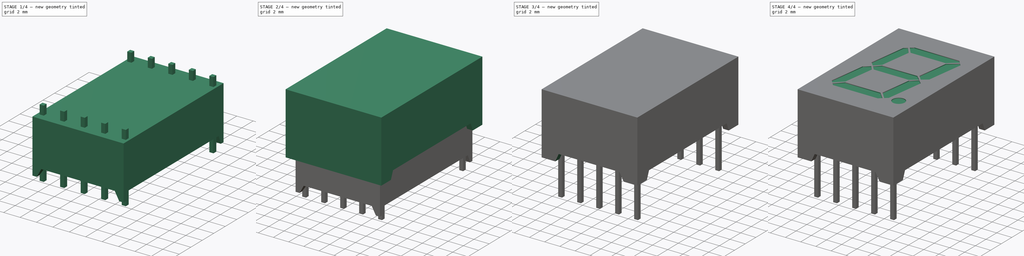
[diagram: build sequence overview — one tinted view per stage of 4, left to right]
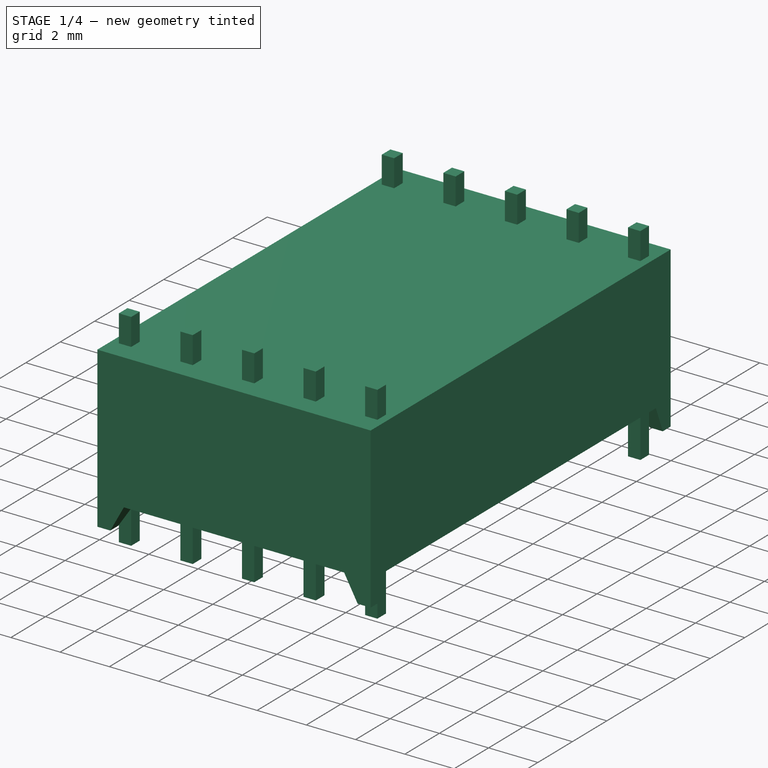
[diagram: stage 1 of 4 — iso view after this stage's code; geometry added in this stage tinted green]
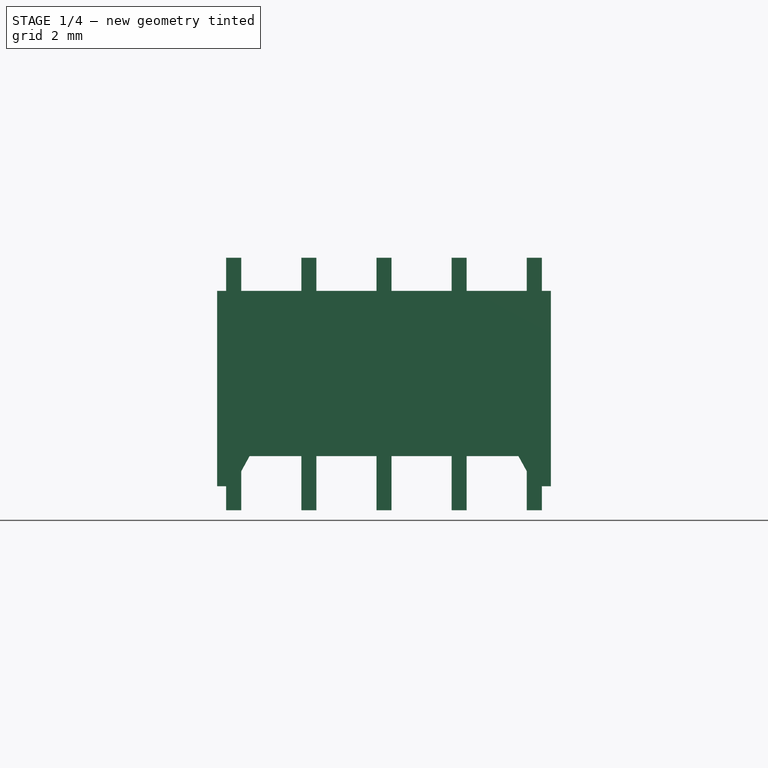
[diagram: stage 1 of 4 — front view after this stage's code; geometry added in this stage tinted green]
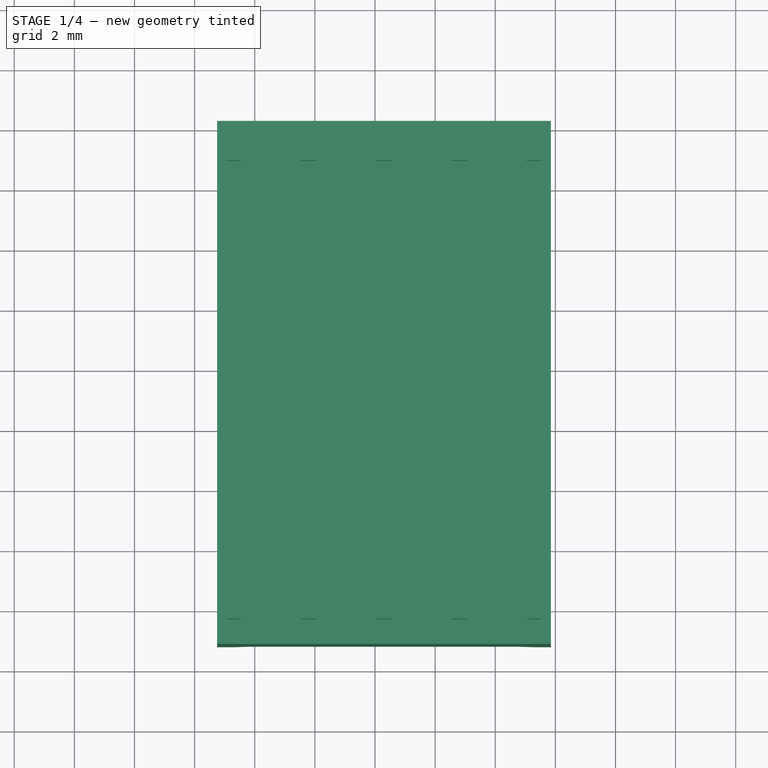
[diagram: stage 1 of 4 — top view after this stage's code; geometry added in this stage tinted green]
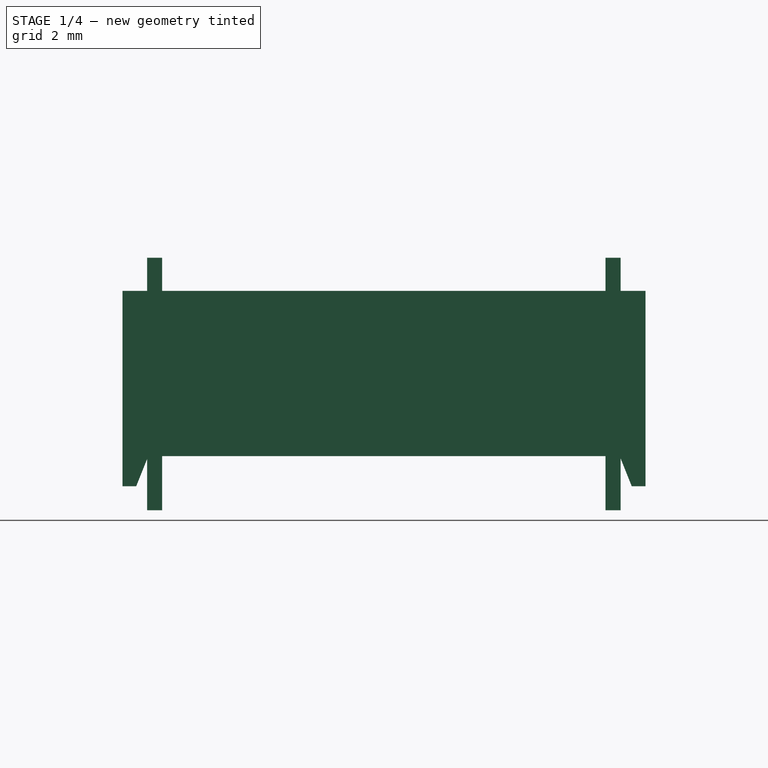
[diagram: stage 1 of 4 — right view after this stage's code; geometry added in this stage tinted green]
FCSTD DOCUMENT  (FreeCAD 0.18R16131 (Git))
Label: Display 7 segmentos
License: Public Domain
LicenseURL: http://en.wikipedia.org/wiki/Public_domain
objects: Sketcher::SketchObject×4, Part::Cut×4, Part::Extrusion×3, Part::Box×2, Part::Feature×2, Part::Offset×1, Part::FeaturePython×1, Part::Part2DObjectPython×1, Part::MultiFuse×1, App::DocumentObjectGroup×1
note: 19 computed .brp shape members not serialized (recipe doc carries the construction recipe); baked Part::Feature solids carry a one-line shape summary decoded from their .brp

FEATURE [Part::Feature] Cut001001  label="corte base largo001"
  Placement = pos=(-0.05,0,0) rot=(0,0,1;0rad)
  shape: bbox 12.7 x 19 x 8.1 mm, 18 faces (baked)
FEATURE [Part::Offset] Offset
  Fill = false
  Intersection = false
  Join = 2
  Mode = 0
  Placement = pos=(0,0,-5) rot=(0,0,1;0rad)
  SelfIntersection = false
  Source = -> Cut001001
  Value = -0.8
FEATURE [Part::Box] Box001  label="Cubo001"
  AttacherType = Attacher::AttachEngine3D
  Height = 8.4
  Length = 0.5
  Placement = pos=(-0.05,0,-5) rot=(0,0,1;0rad)
  Width = 0.5
FEATURE [Part::FeaturePython] Array  # Draft array (typed FeaturePython)
  Angle = 360
  ArrayType = 0
  Axis = (0,0,1)
  Base = -> Box001
  Center = (0,0,0)
  Fuse = false
  IntervalAxis = (0,0,0)
  IntervalX = (2.5,0,0)
  IntervalY = (0,15.25,0)
  IntervalZ = (0,0,1)
  NumberPolar = 1
  NumberX = 5
  NumberY = 2
  NumberZ = 1
  Placement = pos=(1.1,1.62,6.9e-07) rot=(0,0,1;0rad)
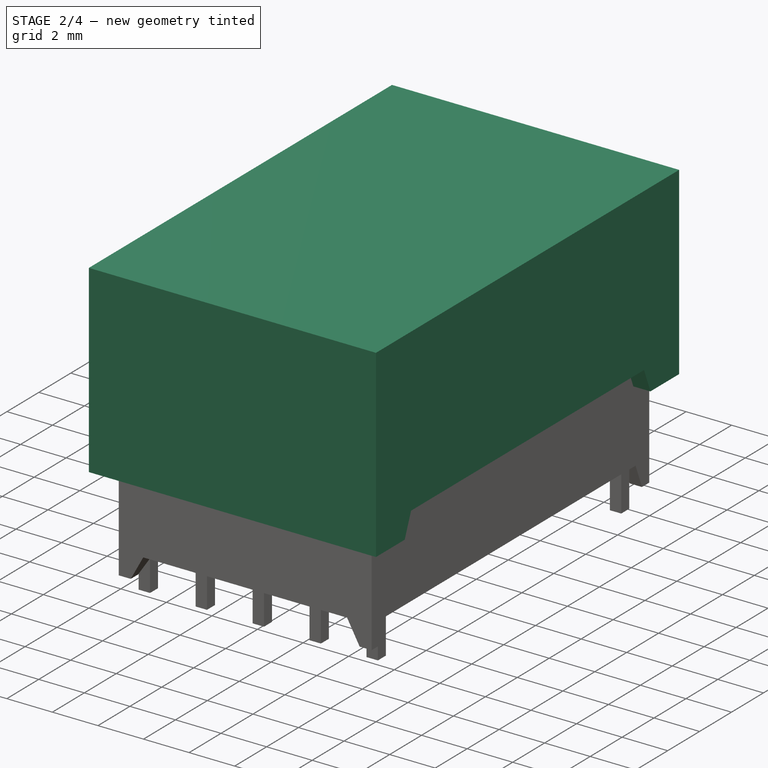
[diagram: stage 2 of 4 — iso view after this stage's code; geometry added in this stage tinted green]
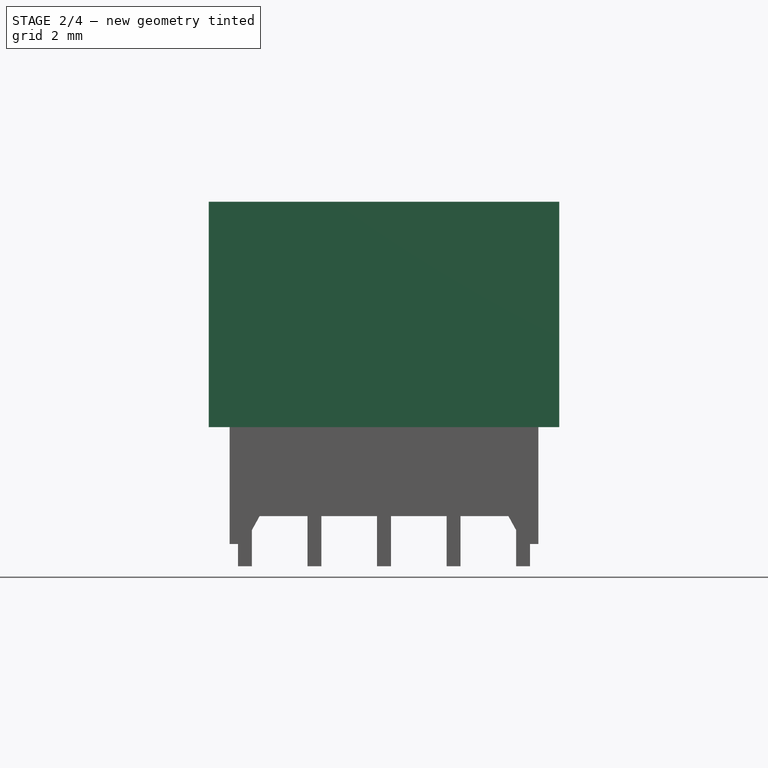
[diagram: stage 2 of 4 — front view after this stage's code; geometry added in this stage tinted green]
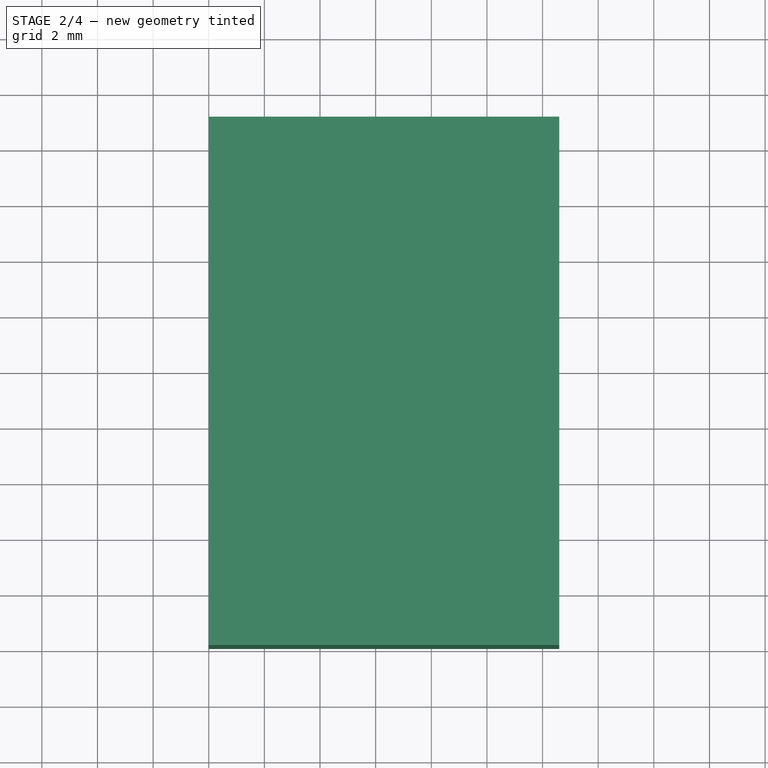
[diagram: stage 2 of 4 — top view after this stage's code; geometry added in this stage tinted green]
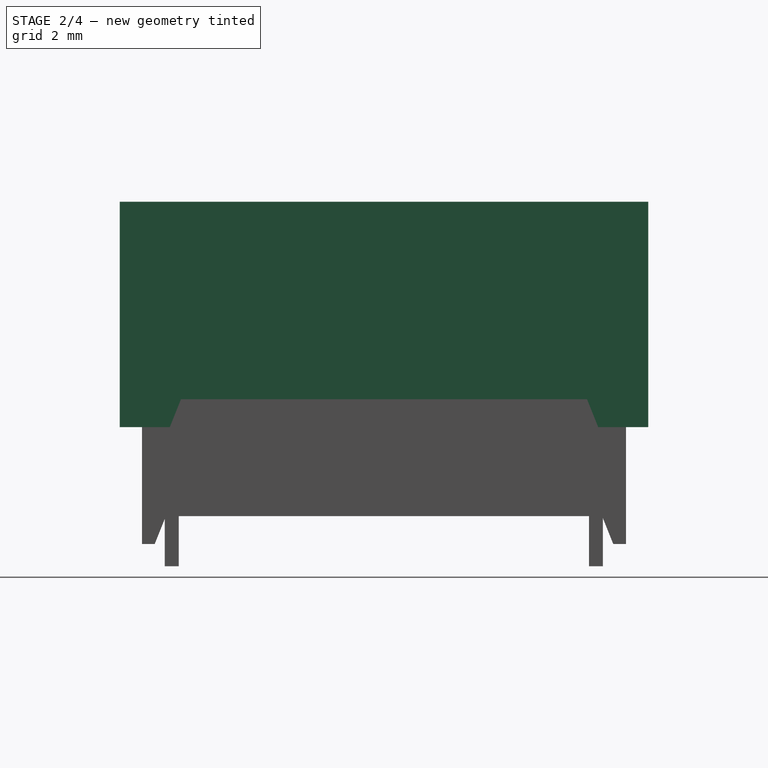
[diagram: stage 2 of 4 — right view after this stage's code; geometry added in this stage tinted green]
FEATURE [Part::Box] Box  label="Cubo"
  AttacherType = Attacher::AttachEngine3D
  Height = 8.1
  Length = 12.6
  Width = 19
FEATURE [Sketcher::SketchObject] Sketch  label="Rebaje base ancho"
  ExternalGeometry = -> [Box]
  MapMode = 5
  Placement = pos=(12.6,0,0) rot=(0.57735,0.57735,0.57735;2.0944rad)
  Support = -> [Box]
  sketch-geometry (9):
    g0: LineSegment StartX=2.2 StartY=1 StartZ=0 EndX=16.8 EndY=1 EndZ=0
    g1: LineSegment [constr] StartX=19 StartY=8.1 StartZ=0 EndX=19 EndY=1 EndZ=0
    g2: LineSegment [constr] StartX=9.5 StartY=8.1 StartZ=0 EndX=19 EndY=8.1 EndZ=0
    g3: LineSegment [constr] StartX=9.5 StartY=8.1 StartZ=0 EndX=9.5 EndY=0 EndZ=0
    g4: LineSegment [constr] StartX=0 StartY=0 StartZ=0 EndX=1.8 EndY=0 EndZ=0
    g5: LineSegment StartX=2.2 StartY=1 StartZ=0 EndX=1.8 EndY=0 EndZ=0
    g6: LineSegment [constr] StartX=19 StartY=0 StartZ=0 EndX=17.2 EndY=0 EndZ=0
    g7: LineSegment StartX=16.8 StartY=1 StartZ=0 EndX=17.2 EndY=0 EndZ=0
    g8: LineSegment StartX=17.2 StartY=0 StartZ=0 EndX=1.8 EndY=0 EndZ=0
  constraints (24):
    c: Horizontal(g0)
    c: DistanceX(g0,g0) = 14.6
    c: Vertical(g1)
    c: DistanceY(g1,g1) = 7.1
    c: Coincident(g1,g-3)
    c: Horizontal(g2)
    c: DistanceX(g2,g2) = 9.5
    c: Coincident(g2,g1)
    c: Coincident(g3,g2)
    c: PointOnObject(g3,g-1)
    c: Symmetric(g0,g0,g3)
    c: DistanceY(g-1,g0) = 1
    c: PointOnObject(g4,g-1)
    c: Coincident(g4,g-1)
    c: DistanceX(g4,g4) = 1.8
    c: Coincident(g5,g0)
    c: Coincident(g5,g4)
    c: Coincident(g6,g-4)
    c: PointOnObject(g6,g-1)
    c: DistanceX(g6,g6) = 1.8
    c: Coincident(g7,g0)
    c: Coincident(g7,g6)
    c: Coincident(g8,g7)
    c: Coincident(g4,g8)
FEATURE [Part::Extrusion] Extrude  label="rebaje ancho"
  Base = -> Sketch
  Dir = (1,0,0)
  DirMode = 2
  FaceMakerClass = Part::FaceMakerBullseye
  LengthFwd = 14
  LengthRev = 0
  Placement = pos=(1,0,0) rot=(0,0,1;0rad)
  Reversed = true
  Solid = true
  Symmetric = false
FEATURE [Part::Cut] Cut  label="corte base ancho"
  Base = -> Box
  Refine = true
  Tool = -> Extrude
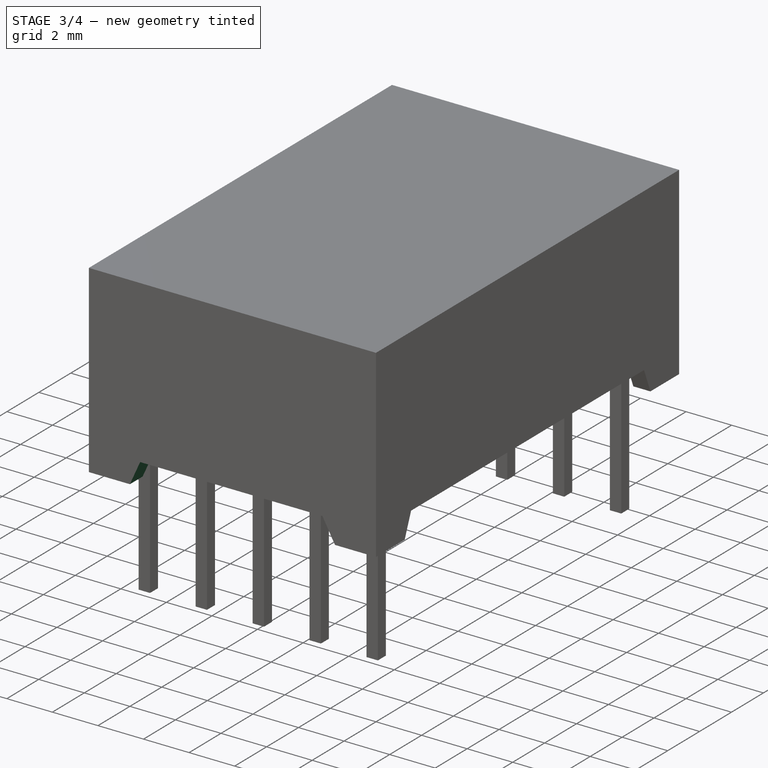
[diagram: stage 3 of 4 — iso view after this stage's code; geometry added in this stage tinted green]
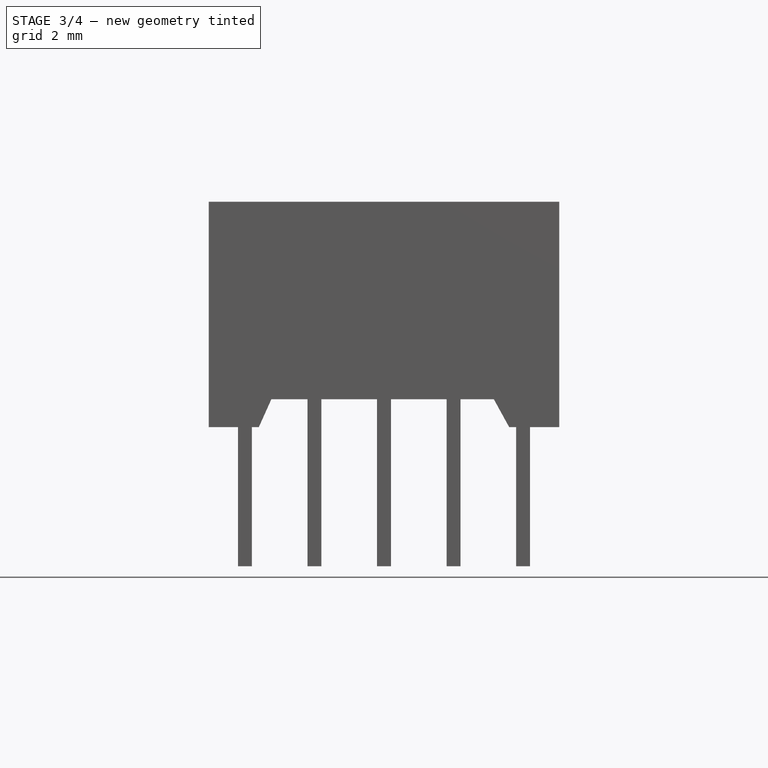
[diagram: stage 3 of 4 — front view after this stage's code; geometry added in this stage tinted green]
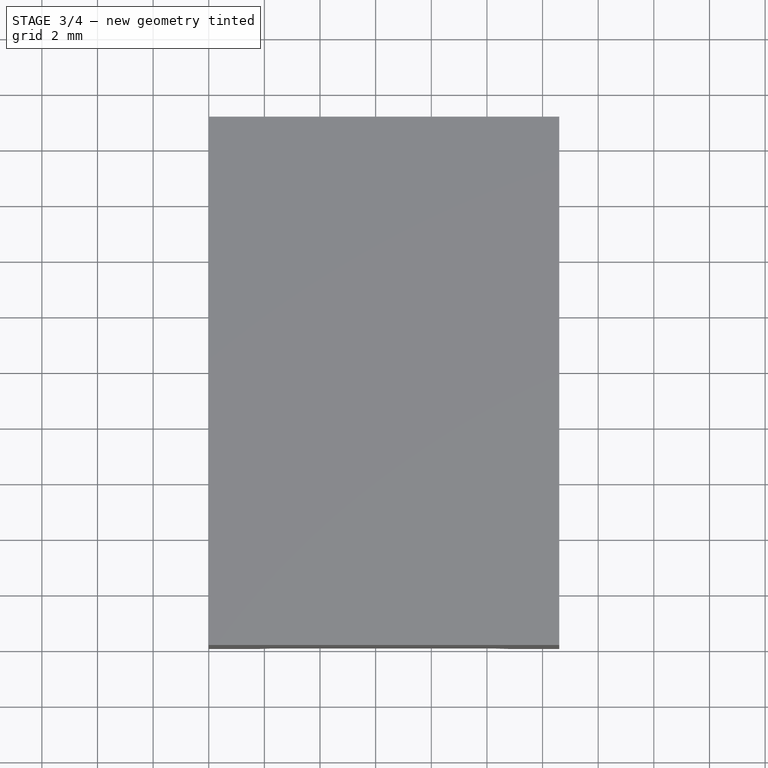
[diagram: stage 3 of 4 — top view after this stage's code; geometry added in this stage tinted green]
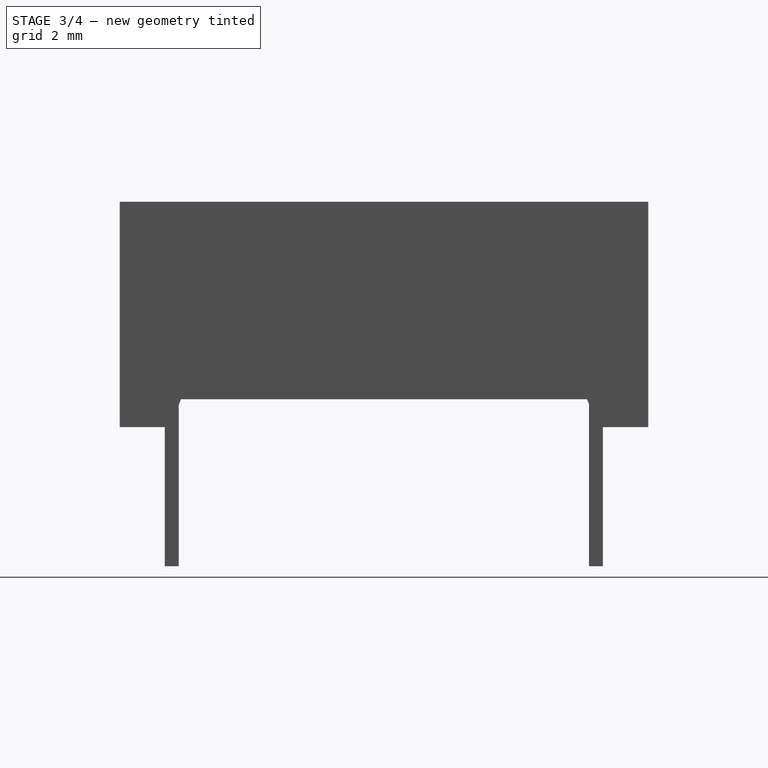
[diagram: stage 3 of 4 — right view after this stage's code; geometry added in this stage tinted green]
FEATURE [Sketcher::SketchObject] Sketch001  label="Rebaje base largo"
  ExternalGeometry = -> [Cut]
  MapMode = 5
  Placement = pos=(0,0,0) rot=(1,0,0;1.5708rad)
  Support = -> [Cut]
  sketch-geometry (8):
    g0: LineSegment StartX=2.25 StartY=1 StartZ=0 EndX=10.25 EndY=1 EndZ=0
    g1: LineSegment [constr] StartX=12.6 StartY=0 StartZ=0 EndX=10.8 EndY=0 EndZ=0
    g2: LineSegment [constr] StartX=0 StartY=0 StartZ=0 EndX=1.8 EndY=0 EndZ=0
    g3: LineSegment [constr] StartX=6.25 StartY=8.1 StartZ=0 EndX=12.6 EndY=8.1 EndZ=0
    g4: LineSegment StartX=10.25 StartY=1 StartZ=0 EndX=10.8 EndY=0 EndZ=0
    g5: LineSegment StartX=2.25 StartY=1 StartZ=0 EndX=1.8 EndY=0 EndZ=0
    g6: LineSegment [constr] StartX=6.25 StartY=8.1 StartZ=0 EndX=6.25 EndY=1 EndZ=0
    g7: LineSegment StartX=1.8 StartY=0 StartZ=0 EndX=10.8 EndY=0 EndZ=0
  constraints (21):
    c: DistanceX(g0,g0) = 8
    c: Coincident(g1,g-4)
    c: Horizontal(g1)
    c: DistanceX(g1,g1) = 1.8
    c: Coincident(g2,g-1)
    c: Horizontal(g2)
    c: DistanceX(g2,g2) = 1.8
    c: DistanceX(g3,g3) = 6.35
    c: Coincident(g4,g0)
    c: Coincident(g4,g1)
    c: Coincident(g5,g2)
    c: Coincident(g5,g0)
    c: Horizontal(g0)
    c: DistanceY(g1,g0) = 1
    c: Horizontal(g3)
    c: Coincident(g3,g-3)
    c: Coincident(g6,g3)
    c: PointOnObject(g6,g0)
    c: Symmetric(g0,g0,g6)
    c: Coincident(g7,g5)
    c: Coincident(g7,g4)
FEATURE [Part::Extrusion] Extrude001  label="rebaje largo"
  Base = -> Sketch001
  Dir = (0,-1,2e-16)
  DirMode = 2
  FaceMakerClass = Part::FaceMakerBullseye
  LengthFwd = 21
  LengthRev = 0
  Placement = pos=(0,-1,0) rot=(0,0,1;0rad)
  Reversed = true
  Solid = true
  Symmetric = false
FEATURE [Part::Cut] Cut001  label="corte base largo"
  Base = -> Cut
  Refine = true
  Tool = -> Extrude001
FEATURE [Part::Cut] Cut001002
  Base = -> Cut001
  Refine = true
  Tool = -> Offset
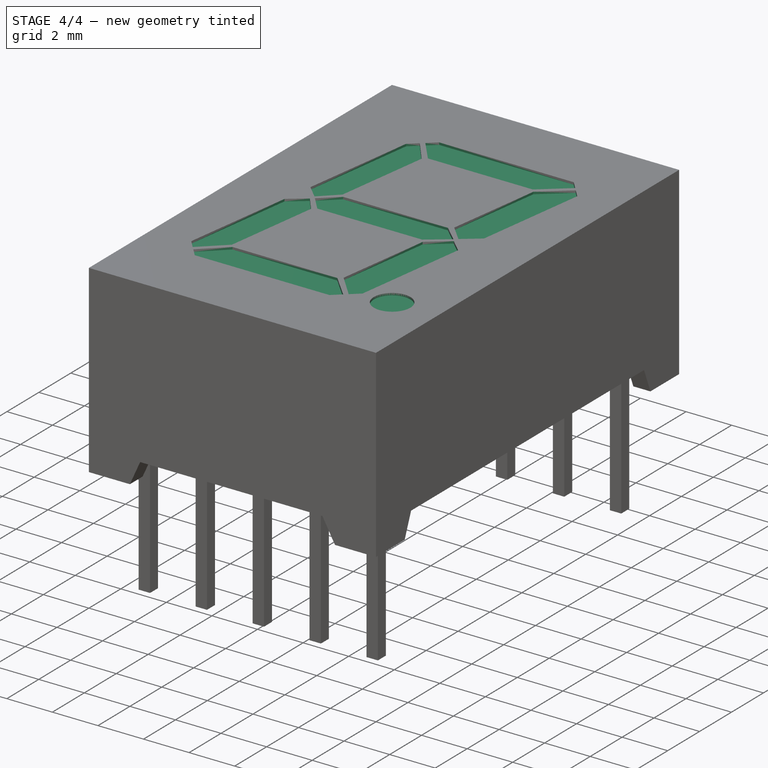
[diagram: stage 4 of 4 — iso view after this stage's code; geometry added in this stage tinted green]
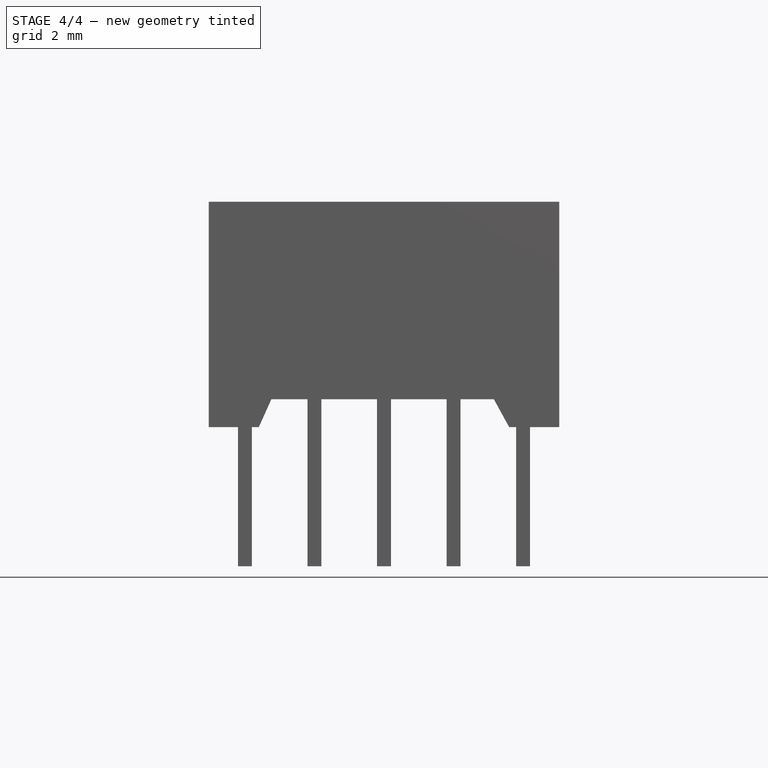
[diagram: stage 4 of 4 — front view after this stage's code; geometry added in this stage tinted green]
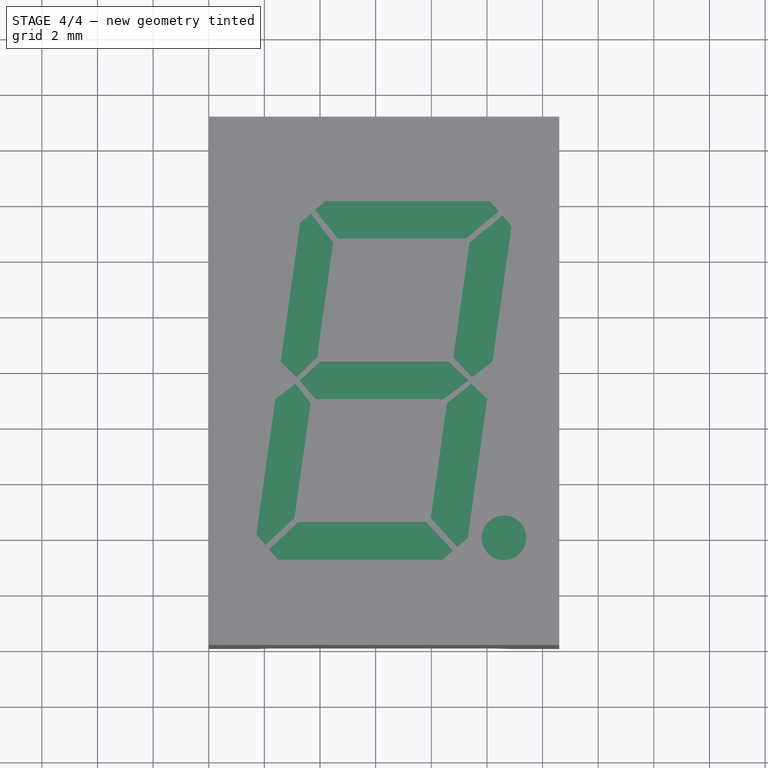
[diagram: stage 4 of 4 — top view after this stage's code; geometry added in this stage tinted green]
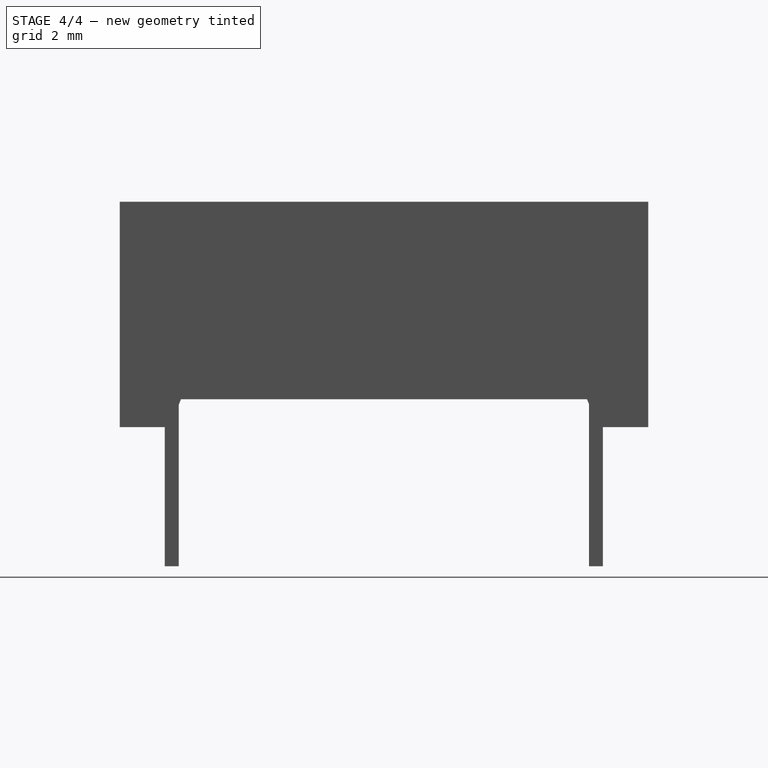
[diagram: stage 4 of 4 — right view after this stage's code; geometry added in this stage tinted green]
FEATURE [Part::Part2DObjectPython] Line001  # Draft 2D object (typed FeaturePython)
  ChamferSize = 0
  Closed = false
  End = (6.35,18.2,2.3)
  FilletRadius = 0
  Length = 17.4
  MakeFace = true
  Placement = pos=(6.35,0.8,2.3) rot=(0.707107,-0.707107,0;3.14159rad)
  Points = (2) [(0,0,0),(-17.4,-7.10543e-15,0)]
  Start = (6.35,0.8,2.3)
  Subdivisions = 0
FEATURE [Part::MultiFuse] Fusion
  Refine = true
  Shapes = -> [Cut001002,Array]
FEATURE [Sketcher::SketchObject] Sketch002  label="Base numeros"
  ExternalGeometry = -> [Fusion]
  MapMode = 5
  Placement = pos=(0,0,8.1) rot=(0,0,1;0rad)
  Support = -> [Fusion]
  sketch-geometry (26):
    g0: LineSegment [constr] StartX=0 StartY=19 StartZ=0 EndX=6.3 EndY=19 EndZ=0
    g1: LineSegment [constr] StartX=0 StartY=19 StartZ=0 EndX=0 EndY=9.5 EndZ=0
    g2: LineSegment StartX=3.28556 StartY=15.1802 StartZ=0 EndX=2.56245 EndY=10.035 EndZ=0
    g3: LineSegment StartX=10.8856 StartY=15.0618 StartZ=0 EndX=10.1791 EndY=10.035 EndZ=0
    g4: LineSegment StartX=9.39403 StartY=14.6175 StartZ=0 EndX=8.75 EndY=10.035 EndZ=0
    g5: LineSegment StartX=4.49403 StartY=14.6175 StartZ=0 EndX=9.39403 EndY=14.6175 EndZ=0
    g6: LineSegment StartX=3.06051 StartY=4.4175 StartZ=0 EndX=7.96051 EndY=4.4175 EndZ=0
    g7: LineSegment StartX=4.19122 StartY=15.9675 StartZ=0 EndX=10.0983 EndY=15.9675 EndZ=0
    g8: LineSegment StartX=4.49403 StartY=14.6175 StartZ=0 EndX=3.85 EndY=10.035 EndZ=0
    g9: LineSegment StartX=2.49778 StartY=3.0675 StartZ=0 EndX=8.40486 EndY=3.0675 EndZ=0
    g10: LineSegment StartX=3.85 StartY=10.035 StartZ=0 EndX=8.75 EndY=10.035 EndZ=0
    g11: LineSegment StartX=8.60454 StartY=9 StartZ=0 EndX=3.70454 EndY=9 EndZ=0
    g12: LineSegment StartX=3.70454 StartY=9 StartZ=0 EndX=3.06051 EndY=4.4175 EndZ=0
    g13: LineSegment StartX=8.60454 StartY=9 StartZ=0 EndX=7.96051 EndY=4.4175 EndZ=0
    g14: LineSegment StartX=3.28556 StartY=15.1802 StartZ=0 EndX=4.19122 EndY=15.9675 EndZ=0
    g15: LineSegment StartX=10.0983 StartY=15.9675 StartZ=0 EndX=10.8856 EndY=15.0618 EndZ=0
    g16: LineSegment StartX=8.40486 StartY=3.0675 StartZ=0 EndX=9.31051 EndY=3.85477 EndZ=0
    g17: LineSegment StartX=2.49778 StartY=3.0675 StartZ=0 EndX=1.71051 EndY=3.97315 EndZ=0
    g18: LineSegment StartX=10.0336 StartY=9 StartZ=0 EndX=9.31051 EndY=3.85477 EndZ=0
    g19: LineSegment StartX=2.41699 StartY=9 StartZ=0 EndX=1.71051 EndY=3.97315 EndZ=0
    g20: LineSegment [constr] StartX=2.41699 StartY=9 StartZ=0 EndX=3.70454 EndY=9 EndZ=0
    g21: LineSegment [constr] StartX=8.60454 StartY=9 StartZ=0 EndX=10.0336 EndY=9 EndZ=0
    g22: LineSegment [constr] StartX=2.56245 StartY=10.035 StartZ=0 EndX=3.85 EndY=10.035 EndZ=0
    g23: LineSegment [constr] StartX=8.75 StartY=10.035 StartZ=0 EndX=10.1791 EndY=10.035 EndZ=0
    g24: LineSegment [constr] StartX=0 StartY=9.5 StartZ=0 EndX=6.3 EndY=9.5 EndZ=0
    g25: LineSegment [constr] StartX=6.3 StartY=19 StartZ=0 EndX=6.3 EndY=9.5 EndZ=0
  constraints (72):
    c: DistanceX(g-5,g-4) = 12.6
    c: DistanceY(g-6,g-4) = 19
    c: Coincident(g0,g-5)
    c: PointOnObject(g0,g-3)
    c: DistanceX(g0,g0) = 6.3
    c: Coincident(g1,g0)
    c: PointOnObject(g1,g-5)
    c: DistanceY(g1,g0) = 9.5
    c: Parallel(g4,g3)
    c: Horizontal(g5)
    c: Horizontal(g6)
    c: Coincident(g4,g5)
    c: Horizontal(g7)
    c: Coincident(g13,g6)
    c: Coincident(g12,g6)
    c: Parallel(g4,g8)
    c: Parallel(g8,g2)
    c: Horizontal(g9)
    c: Coincident(g8,g5)
    c: Angle(g4,g6) = 1.71042
    c: Horizontal(g10)
    c: Horizontal(g11)
    c: Coincident(g8,g10)
    c: Coincident(g12,g11)
    c: Tangent(g8,g12)
    c: Coincident(g4,g10)
    c: Coincident(g13,g11)
    c: Tangent(g4,g13)
    c: DistanceY(g11,g4) = 1.035
    c: Equal(g4,g13)
    c: Coincident(g14,g2)
    c: Coincident(g14,g7)
    c: Angle(g2,g14) = 2.42601
    c: Coincident(g15,g7)
    c: Coincident(g15,g3)
    c: Angle(g7,g15) = 2.28638
    c: Distance(g15) = 1.2
    c: Distance(g14) = 1.2
    c: Coincident(g16,g9)
    c: Coincident(g16,g18)
    c: Coincident(g9,g17)
    c: Coincident(g17,g19)
    c: Angle(g16,g9) = 2.42601
    c: Distance(g16) = 1.2
    c: Angle(g9,g17) = 2.28638
    c: Distance(g17) = 1.2
    c: DistanceY(g9,g7) = 12.9
    c: DistanceX(g19,g18) = 7.6
    c: DistanceY(g4,g7) = 1.35
    c: DistanceY(g9,g6) = 1.35
    c: DistanceX(g6,g18) = 1.35
    c: DistanceX(g19,g6) = 1.35
    c: Tangent(g3,g18)
    c: Tangent(g2,g19)
    c: Coincident(g20,g11)
    c: Horizontal(g20)
    c: Coincident(g21,g11)
    c: Horizontal(g21)
    c: Coincident(g22,g2)
    c: Coincident(g22,g8)
    c: Horizontal(g22)
    c: Coincident(g23,g4)
    c: Coincident(g23,g3)
    c: Horizontal(g23)
    c: Coincident(g19,g20)
    c: Coincident(g18,g21)
    c: Coincident(g24,g1)
    c: Horizontal(g24)
    c: Coincident(g25,g0)
    c: Coincident(g24,g25)
    c: Symmetric(g8,g4,g25)
    c: DistanceY(g-1,g19) = 9
FEATURE [Sketcher::SketchObject] Sketch004  label="Numeros"
  ExternalGeometry = -> [Sketch002]
  MapMode = 2
  Placement = pos=(0,0,8.1) rot=(0,0,1;0rad)
  Support = -> [Sketch002]
  sketch-geometry (81):
    g0: LineSegment [constr] StartX=3.06051 StartY=4.4175 StartZ=0 EndX=3.21051 EndY=4.4175 EndZ=0
    g1: LineSegment [constr] StartX=7.81051 StartY=4.4175 StartZ=0 EndX=7.96051 EndY=4.4175 EndZ=0
    g2: LineSegment [constr] StartX=3.68241 StartY=8.8425 StartZ=0 EndX=3.83241 EndY=8.8425 EndZ=0
    g3: LineSegment [constr] StartX=8.58241 StartY=8.8425 StartZ=0 EndX=8.43241 EndY=8.8425 EndZ=0
    g4: LineSegment [constr] StartX=7.96051 StartY=4.4175 StartZ=0 EndX=7.98139 EndY=4.56604 EndZ=0
    g5: LineSegment [constr] StartX=8.58241 StartY=8.8425 StartZ=0 EndX=8.56153 EndY=8.69396 EndZ=0
    g6: LineSegment [constr] StartX=3.68241 StartY=8.8425 StartZ=0 EndX=3.66153 EndY=8.69396 EndZ=0
    g7: LineSegment [constr] StartX=3.06051 StartY=4.4175 StartZ=0 EndX=3.08139 EndY=4.56604 EndZ=0
    g8: LineSegment [constr] StartX=3.87214 StartY=10.1925 StartZ=0 EndX=4.02214 EndY=10.1925 EndZ=0
    g9: LineSegment [constr] StartX=3.87214 StartY=10.1925 StartZ=0 EndX=3.89301 EndY=10.341 EndZ=0
    g10: LineSegment [constr] StartX=8.77214 StartY=10.1925 StartZ=0 EndX=8.62214 EndY=10.1925 EndZ=0
    g11: LineSegment [constr] StartX=8.77214 StartY=10.1925 StartZ=0 EndX=8.79301 EndY=10.341 EndZ=0
    g12: LineSegment [constr] StartX=9.39403 StartY=14.6175 StartZ=0 EndX=9.37315 EndY=14.469 EndZ=0
    g13: LineSegment [constr] StartX=9.39403 StartY=14.6175 StartZ=0 EndX=9.24403 EndY=14.6175 EndZ=0
    g14: LineSegment [constr] StartX=4.49403 StartY=14.6175 StartZ=0 EndX=4.64403 EndY=14.6175 EndZ=0
    g15: LineSegment [constr] StartX=4.49403 StartY=14.6175 StartZ=0 EndX=4.47315 EndY=14.469 EndZ=0
    g16: LineSegment [constr] StartX=8.40486 StartY=3.0675 StartZ=0 EndX=8.78222 EndY=3.39553 EndZ=0
    g17: LineSegment [constr] StartX=9.31051 StartY=3.85477 StartZ=0 EndX=8.93316 EndY=3.52674 EndZ=0
    g18: LineSegment [constr] StartX=2.49778 StartY=3.0675 StartZ=0 EndX=2.16975 EndY=3.44485 EndZ=0
    g19: LineSegment [constr] StartX=1.71051 StartY=3.97315 StartZ=0 EndX=2.03854 EndY=3.5958 EndZ=0
    g20: LineSegment [constr] StartX=3.28556 StartY=15.1802 StartZ=0 EndX=3.66292 EndY=15.5083 EndZ=0
    g21: LineSegment [constr] StartX=4.19122 StartY=15.9675 StartZ=0 EndX=3.81386 EndY=15.6395 EndZ=0
    g22: LineSegment [constr] StartX=10.8856 StartY=15.0618 StartZ=0 EndX=10.5575 EndY=15.4392 EndZ=0
    g23: LineSegment [constr] StartX=10.0983 StartY=15.9675 StartZ=0 EndX=10.4263 EndY=15.5901 EndZ=0
    g24: LineSegment [constr] StartX=10.2012 StartY=10.1925 StartZ=0 EndX=10.0115 EndY=8.8425 EndZ=0
    g25: LineSegment [constr] StartX=10.0115 StartY=8.8425 StartZ=0 EndX=2.39485 EndY=8.8425 EndZ=0
    g26: LineSegment [constr] StartX=10.2012 StartY=10.1925 StartZ=0 EndX=2.58458 EndY=10.1925 EndZ=0
    g27: LineSegment StartX=2.16975 StartY=3.44485 StartZ=0 EndX=3.21051 EndY=4.4175 EndZ=0
    g28: LineSegment StartX=3.21051 StartY=4.4175 StartZ=0 EndX=7.81051 EndY=4.4175 EndZ=0
    g29: LineSegment StartX=7.81051 StartY=4.4175 StartZ=0 EndX=8.78222 EndY=3.39553 EndZ=0
    g30: LineSegment StartX=8.78222 StartY=3.39553 StartZ=0 EndX=8.40486 EndY=3.0675 EndZ=0
    g31: LineSegment StartX=8.40486 StartY=3.0675 StartZ=0 EndX=2.49778 EndY=3.0675 EndZ=0
    g32: LineSegment StartX=2.49778 StartY=3.0675 StartZ=0 EndX=2.16975 EndY=3.44485 EndZ=0
    g33: LineSegment StartX=9.24403 StartY=14.6175 StartZ=0 EndX=10.4263 EndY=15.5901 EndZ=0
    g34: LineSegment StartX=10.4263 StartY=15.5901 StartZ=0 EndX=10.0983 EndY=15.9675 EndZ=0
    g35: LineSegment StartX=10.0983 StartY=15.9675 StartZ=0 EndX=4.19122 EndY=15.9675 EndZ=0
    g36: LineSegment StartX=4.19122 StartY=15.9675 StartZ=0 EndX=3.81386 EndY=15.6395 EndZ=0
    g37: LineSegment StartX=3.81386 StartY=15.6395 StartZ=0 EndX=4.64403 EndY=14.6175 EndZ=0
    g38: LineSegment StartX=4.64403 StartY=14.6175 StartZ=0 EndX=9.24403 EndY=14.6175 EndZ=0
    g39: LineSegment [constr] StartX=10.1057 StartY=9.5125 StartZ=0 EndX=2.48902 EndY=9.5125 EndZ=0
    g40: LineSegment [constr] StartX=10.1057 StartY=9.5125 StartZ=0 EndX=9.45565 EndY=9.5125 EndZ=0
    g41: LineSegment [constr] StartX=9.45565 StartY=9.5125 StartZ=0 EndX=9.33565 EndY=9.5125 EndZ=0
    g42: LineSegment [constr] StartX=9.45565 StartY=9.5125 StartZ=0 EndX=9.43879 EndY=9.3925 EndZ=0
    g43: LineSegment [constr] StartX=9.45565 StartY=9.5125 StartZ=0 EndX=9.47252 EndY=9.6325 EndZ=0
    g44: LineSegment StartX=9.43879 StartY=9.3925 StartZ=0 EndX=10.0115 EndY=8.8425 EndZ=0
    g45: LineSegment StartX=10.0115 StartY=8.8425 StartZ=0 EndX=9.31051 EndY=3.85477 EndZ=0
    g46: LineSegment StartX=9.31051 StartY=3.85477 StartZ=0 EndX=8.93316 EndY=3.52674 EndZ=0
    g47: LineSegment StartX=8.93316 StartY=3.52674 StartZ=0 EndX=7.98139 EndY=4.56604 EndZ=0
    g48: LineSegment StartX=7.98139 StartY=4.56604 StartZ=0 EndX=8.56153 EndY=8.69396 EndZ=0
    g49: LineSegment StartX=8.56153 StartY=8.69396 StartZ=0 EndX=9.43879 EndY=9.3925 EndZ=0
    g50: LineSegment StartX=9.47252 StartY=9.6325 StartZ=0 EndX=10.2012 EndY=10.1925 EndZ=0
    g51: LineSegment StartX=10.2012 StartY=10.1925 StartZ=0 EndX=10.8856 EndY=15.0618 EndZ=0
    g52: LineSegment StartX=10.8856 StartY=15.0618 StartZ=0 EndX=10.5575 EndY=15.4392 EndZ=0
    g53: LineSegment StartX=10.5575 StartY=15.4392 StartZ=0 EndX=9.37315 EndY=14.469 EndZ=0
    g54: LineSegment StartX=9.37315 StartY=14.469 StartZ=0 EndX=8.79301 EndY=10.341 EndZ=0
    g55: LineSegment StartX=8.79301 StartY=10.341 StartZ=0 EndX=9.47252 EndY=9.6325 EndZ=0
    g56: LineSegment [constr] StartX=2.58458 StartY=10.1925 StartZ=0 EndX=2.39485 EndY=8.8425 EndZ=0
    g57: LineSegment [constr] StartX=2.48902 StartY=9.5125 StartZ=0 EndX=3.13902 EndY=9.5125 EndZ=0
    g58: LineSegment [constr] StartX=3.13902 StartY=9.5125 StartZ=0 EndX=3.15588 EndY=9.6325 EndZ=0
    g59: LineSegment [constr] StartX=3.13902 StartY=9.5125 StartZ=0 EndX=3.12215 EndY=9.3925 EndZ=0
    g60: LineSegment [constr] StartX=3.13902 StartY=9.5125 StartZ=0 EndX=3.25902 EndY=9.5125 EndZ=0
    g61: LineSegment StartX=3.83241 StartY=8.8425 StartZ=0 EndX=3.25902 EndY=9.5125 EndZ=0
    g62: LineSegment StartX=3.25902 StartY=9.5125 StartZ=0 EndX=4.02214 EndY=10.1925 EndZ=0
    g63: LineSegment StartX=4.02214 StartY=10.1925 StartZ=0 EndX=8.62214 EndY=10.1925 EndZ=0
    g64: LineSegment StartX=8.62214 StartY=10.1925 StartZ=0 EndX=9.33565 EndY=9.5125 EndZ=0
    g65: LineSegment StartX=9.33565 StartY=9.5125 StartZ=0 EndX=8.43241 EndY=8.8425 EndZ=0
    g66: LineSegment StartX=8.43241 StartY=8.8425 StartZ=0 EndX=3.83241 EndY=8.8425 EndZ=0
    g67: LineSegment StartX=3.12215 StartY=9.3925 StartZ=0 EndX=3.66153 EndY=8.69396 EndZ=0
    g68: LineSegment StartX=3.66153 StartY=8.69396 StartZ=0 EndX=3.08139 EndY=4.56604 EndZ=0
    g69: LineSegment StartX=3.08139 StartY=4.56604 StartZ=0 EndX=2.03854 EndY=3.5958 EndZ=0
    g70: LineSegment StartX=2.03854 StartY=3.5958 StartZ=0 EndX=1.71051 EndY=3.97315 EndZ=0
    g71: LineSegment StartX=1.71051 StartY=3.97315 StartZ=0 EndX=2.39485 EndY=8.8425 EndZ=0
    g72: LineSegment StartX=2.39485 StartY=8.8425 StartZ=0 EndX=3.12215 EndY=9.3925 EndZ=0
    g73: LineSegment StartX=3.15588 StartY=9.6325 StartZ=0 EndX=3.89301 EndY=10.341 EndZ=0
    g74: LineSegment StartX=3.89301 StartY=10.341 StartZ=0 EndX=4.47315 EndY=14.469 EndZ=0
    g75: LineSegment StartX=4.47315 StartY=14.469 StartZ=0 EndX=3.66292 EndY=15.5083 EndZ=0
    g76: LineSegment StartX=3.66292 StartY=15.5083 StartZ=0 EndX=3.28556 EndY=15.1802 EndZ=0
    g77: LineSegment StartX=3.28556 StartY=15.1802 StartZ=0 EndX=2.58458 EndY=10.1925 EndZ=0
    g78: LineSegment StartX=2.58458 StartY=10.1925 StartZ=0 EndX=3.15588 EndY=9.6325 EndZ=0
    g79: Circle CenterX=10.6105 CenterY=3.85477 CenterZ=0 NormalX=0 NormalY=0 NormalZ=1 AngleXU=0 Radius=0.8
    g80: LineSegment [constr] StartX=9.31051 StartY=3.85477 StartZ=0 EndX=10.6105 EndY=3.85477 EndZ=0
  constraints (205):
    c: PointOnObject(g0,g-12)
    c: DistanceX(g0,g0) = 0.15
    c: Horizontal(g1)
    c: Horizontal(g2)
    c: Coincident(g4,g1)
    c: PointOnObject(g4,g-13)
    c: PointOnObject(g5,g-13)
    c: PointOnObject(g6,g-14)
    c: Coincident(g7,g0)
    c: PointOnObject(g7,g-14)
    c: PointOnObject(g9,g-17)
    c: PointOnObject(g11,g-15)
    c: PointOnObject(g12,g-15)
    c: Coincident(g13,g12)
    c: PointOnObject(g13,g-16)
    c: PointOnObject(g14,g-16)
    c: Coincident(g15,g14)
    c: PointOnObject(g15,g-17)
    c: Coincident(g14,g-16)
    c: Coincident(g12,g-15)
    c: Coincident(g1,g-12)
    c: Coincident(g0,g-12)
    c: Equal(g4,g1)
    c: Equal(g1,g0)
    c: Equal(g0,g7)
    c: Equal(g7,g2)
    c: Equal(g2,g6)
    c: Equal(g6,g3)
    c: Equal(g3,g5)
    c: Equal(g5,g10)
    c: Equal(g10,g11)
    c: Equal(g11,g8)
    c: Equal(g8,g9)
    c: Equal(g9,g15)
    c: Equal(g15,g14)
    c: Equal(g14,g13)
    c: Equal(g13,g12)
    c: Coincident(g16,g-6)
    c: PointOnObject(g16,g-5)
    c: Coincident(g17,g-5)
    c: PointOnObject(g17,g-5)
    c: Coincident(g18,g-7)
    c: PointOnObject(g18,g-7)
    c: Coincident(g19,g-7)
    c: PointOnObject(g19,g-7)
    c: Coincident(g20,g-4)
    c: PointOnObject(g20,g-4)
    c: Coincident(g21,g-4)
    c: PointOnObject(g21,g-4)
    c: Coincident(g22,g-3)
    c: PointOnObject(g22,g-3)
    c: Coincident(g23,g-3)
    c: PointOnObject(g23,g-3)
    c: Distance(g18) = 0.5
    c: Equal(g18,g19)
    c: Equal(g19,g16)
    c: Equal(g16,g17)
    c: Equal(g17,g22)
    c: Equal(g22,g23)
    c: Equal(g23,g21)
    c: Equal(g21,g20)
    c: PointOnObject(g24,g-18)
    c: PointOnObject(g24,g-19)
    c: DistanceY(g24,g24) = 1.35
    c: Coincident(g25,g24)
    c: PointOnObject(g25,g-21)
    c: Horizontal(g25)
    c: Coincident(g26,g24)
    c: PointOnObject(g26,g-20)
    c: Horizontal(g26)
    c: Coincident(g10,g11)
    c: PointOnObject(g10,g-15)
    c: PointOnObject(g10,g26)
    c: Horizontal(g10)
    c: Coincident(g8,g9)
    c: PointOnObject(g8,g26)
    c: PointOnObject(g8,g-17)
    c: PointOnObject(g8,g26)
    c: Coincident(g2,g6)
    c: PointOnObject(g2,g-14)
    c: PointOnObject(g2,g25)
    c: Coincident(g5,g3)
    c: PointOnObject(g3,g-13)
    c: PointOnObject(g3,g25)
    c: PointOnObject(g3,g25)
    c: DistanceY(g1,g3) = 4.425
    c: Coincident(g18,g27)
    c: Coincident(g27,g0)
    c: Coincident(g27,g28)
    c: Coincident(g28,g1)
    c: Coincident(g28,g29)
    c: Coincident(g29,g16)
    c: Coincident(g29,g30)
    c: Coincident(g30,g16)
    c: Coincident(g30,g31)
    c: Coincident(g31,g18)
    c: Coincident(g31,g32)
    c: Coincident(g32,g27)
    c: Coincident(g13,g33)
    c: Coincident(g33,g23)
    c: Coincident(g33,g34)
    c: Coincident(g34,g23)
    c: Coincident(g34,g35)
    c: Coincident(g35,g21)
    c: Coincident(g35,g36)
    c: Coincident(g36,g21)
    c: Coincident(g36,g37)
    c: Coincident(g37,g14)
    c: Coincident(g37,g38)
    c: Coincident(g38,g33)
    c: Horizontal(g39)
    c: PointOnObject(g39,g24)
    c: DistanceY(g39,g24) = 0.68
    c: Coincident(g40,g39)
    c: PointOnObject(g40,g39)
    c: DistanceX(g40,g39) = 0.65
    c: Horizontal(g41)
    c: DistanceX(g41,g40) = 0.12
    c: Coincident(g42,g40)
    c: DistanceY(g42,g42) = 0.12
    c: Coincident(g43,g40)
    c: DistanceY(g40,g43) = 0.12
    c: Coincident(g42,g44)
    c: Coincident(g44,g24)
    c: Coincident(g44,g45)
    c: Coincident(g45,g17)
    c: Coincident(g45,g46)
    c: Coincident(g46,g17)
    c: Coincident(g46,g47)
    c: Coincident(g47,g4)
    c: Coincident(g47,g48)
    c: Coincident(g48,g5)
    c: Coincident(g48,g49)
    c: Coincident(g49,g44)
    c: Coincident(g43,g50)
    c: Coincident(g50,g24)
    c: Coincident(g50,g51)
    c: Coincident(g51,g22)
    c: Coincident(g51,g52)
    c: Coincident(g52,g22)
    c: Coincident(g52,g53)
    c: Coincident(g53,g12)
    c: Coincident(g53,g54)
    c: Coincident(g54,g11)
    c: Coincident(g54,g55)
    c: Coincident(g55,g50)
    c: Coincident(g56,g26)
    c: Coincident(g56,g25)
    c: PointOnObject(g39,g56)
    c: Coincident(g57,g39)
    c: PointOnObject(g57,g39)
    c: DistanceX(g39,g57) = 0.65
    c: Coincident(g58,g57)
    c: DistanceY(g57,g58) = 0.12
    c: Coincident(g59,g57)
    c: DistanceY(g59,g59) = 0.12
    c: Coincident(g60,g57)
    c: Horizontal(g60)
    c: DistanceX(g57,g60) = 0.12
    c: Coincident(g2,g61)
    c: Coincident(g61,g60)
    c: Coincident(g61,g62)
    c: Coincident(g62,g8)
    c: Coincident(g62,g63)
    c: Coincident(g63,g10)
    c: Coincident(g63,g64)
    c: Coincident(g64,g41)
    c: Coincident(g64,g65)
    c: Coincident(g65,g3)
    c: Coincident(g65,g66)
    c: Coincident(g66,g61)
    c: Coincident(g59,g67)
    c: Coincident(g67,g6)
    c: Coincident(g67,g68)
    c: Coincident(g68,g7)
    c: Coincident(g68,g69)
    c: Coincident(g69,g19)
    c: Coincident(g69,g70)
    c: Coincident(g70,g19)
    c: Coincident(g70,g71)
    c: Coincident(g71,g25)
    c: Coincident(g71,g72)
    c: Coincident(g72,g67)
    c: Coincident(g58,g73)
    c: Coincident(g73,g9)
    c: Coincident(g73,g74)
    c: Coincident(g74,g15)
    c: Coincident(g74,g75)
    c: Coincident(g75,g20)
    c: Coincident(g75,g76)
    c: Coincident(g76,g20)
    c: Coincident(g76,g77)
    c: Coincident(g77,g26)
    c: Coincident(g77,g78)
    c: Coincident(g78,g73)
    c: Angle(g59,g39) = 1.71042
    c: Angle(g39,g58) = 1.43117
    c: Angle(g39,g42) = 1.43117
    c: Angle(g43,g39) = 1.71042
    c: Coincident(g41,g40)
    c: Radius(g79) = 0.8
    c: Coincident(g80,g45)
    c: Coincident(g80,g79)
    c: Horizontal(g80)
    c: DistanceX(g45,g79) = 1.3
FEATURE [Part::Extrusion] Extrude002
  Base = -> Sketch004
  Dir = (0,0,1)
  DirMode = 2
  FaceMakerClass = Part::FaceMakerBullseye
  LengthFwd = 0.1
  LengthRev = 0
  Reversed = true
  Solid = true
  Symmetric = false
FEATURE [Part::Cut] Cut001003
  Base = -> Fusion
  Refine = true
  Tool = -> Extrude002
FEATURE [App::DocumentObjectGroup] Group  label="SRC"
  Group = -> [Line001,Sketch002,Cut001003]
FEATURE [Part::Feature] Cut001003_solid  label="Display 7 segmentos"
  shape: bbox 12.6 x 19 x 13.1 mm, 127 faces (baked)
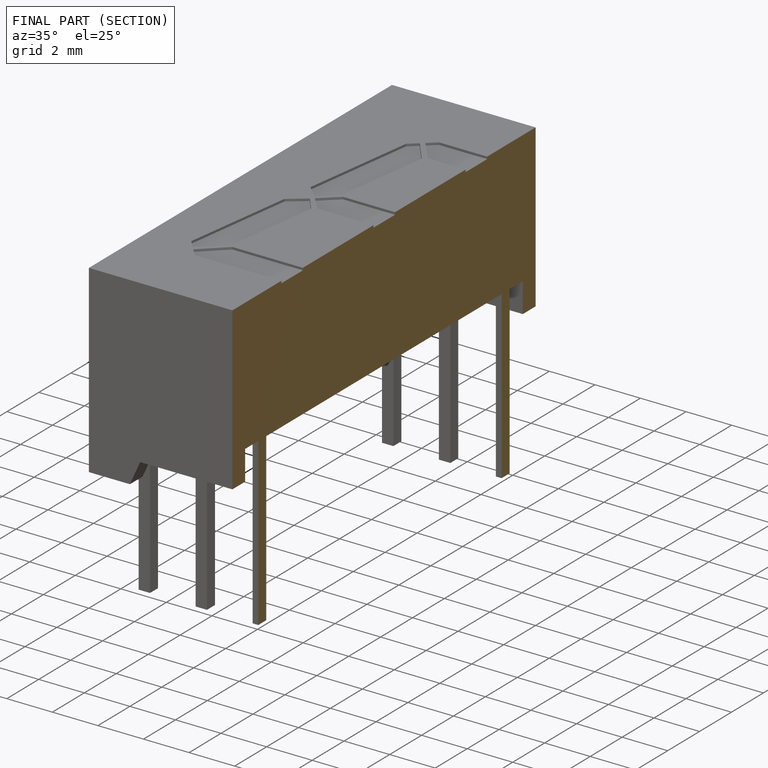
[diagram: finished part — half-section view (interior)]
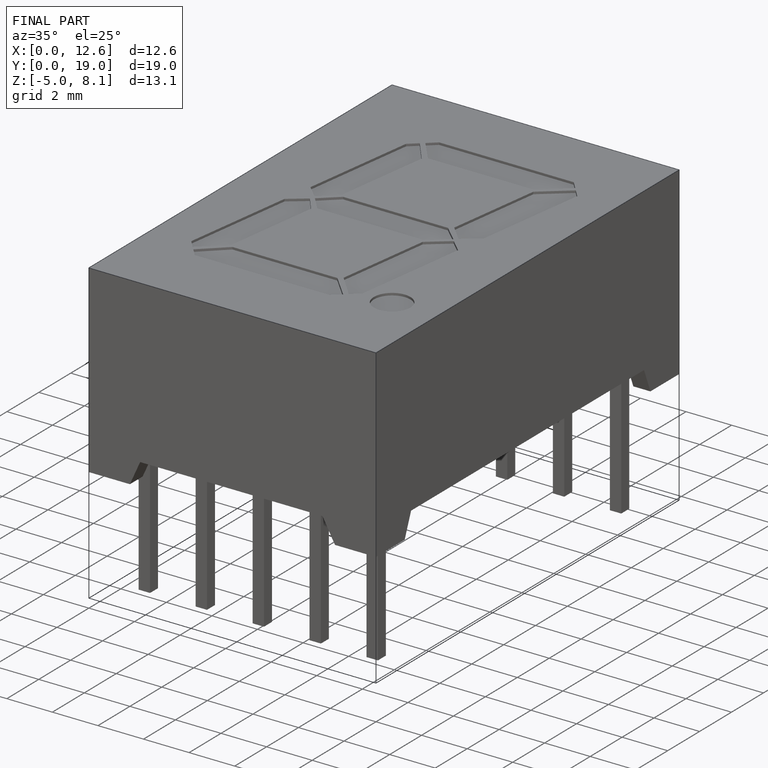
[diagram: finished part — iso view with bounding-box wireframe]
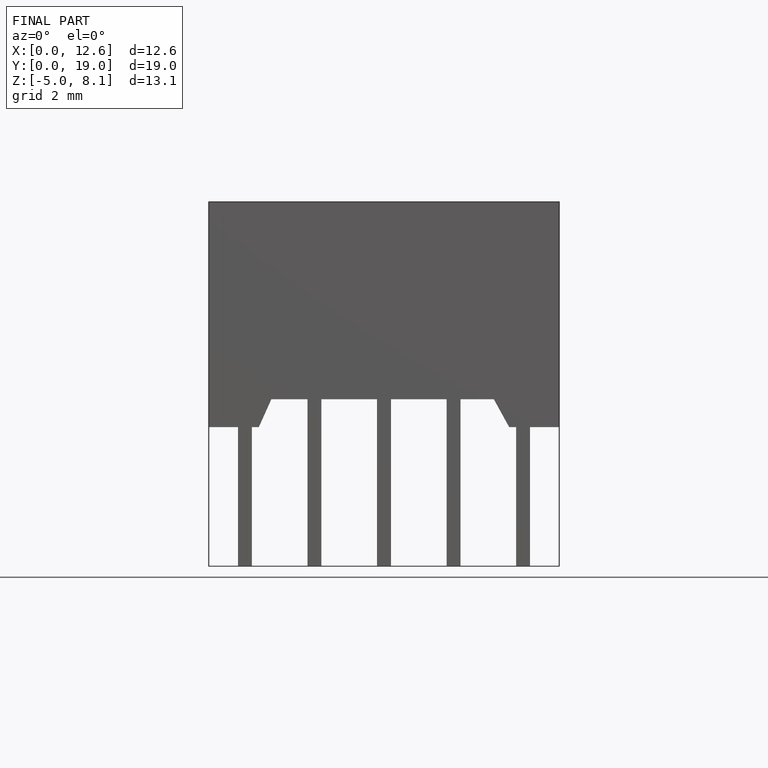
[diagram: finished part — front view with bounding-box wireframe]
